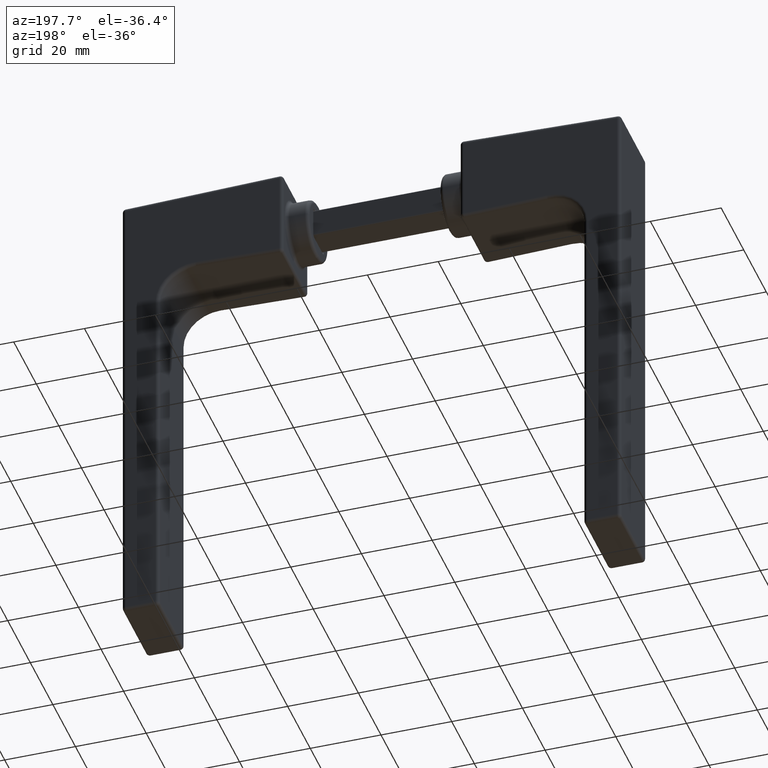
[diagram: clean part render]
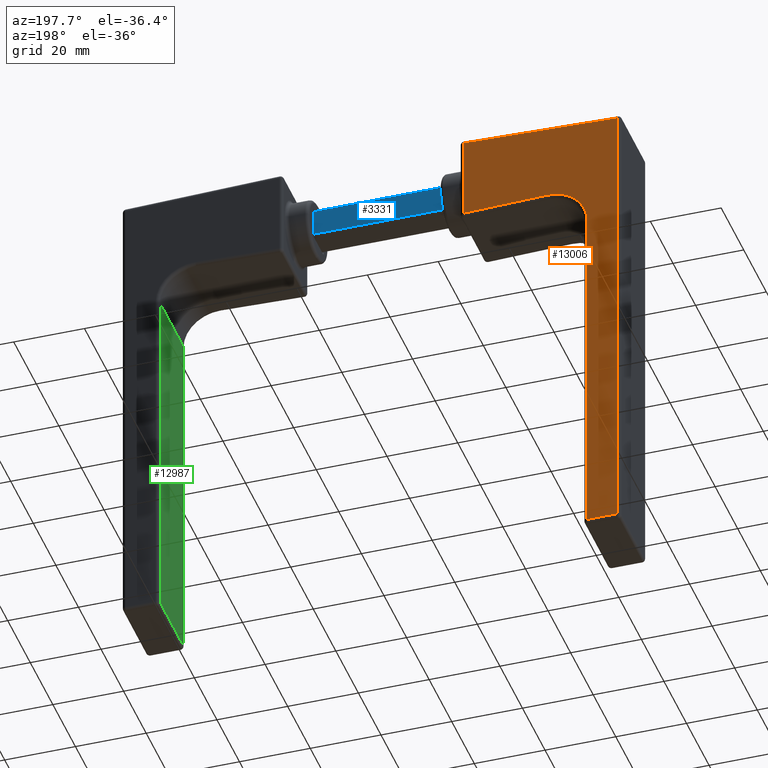
[diagram: same view with three faces highlighted in distinct colors, each labeled with its STEP entity id]
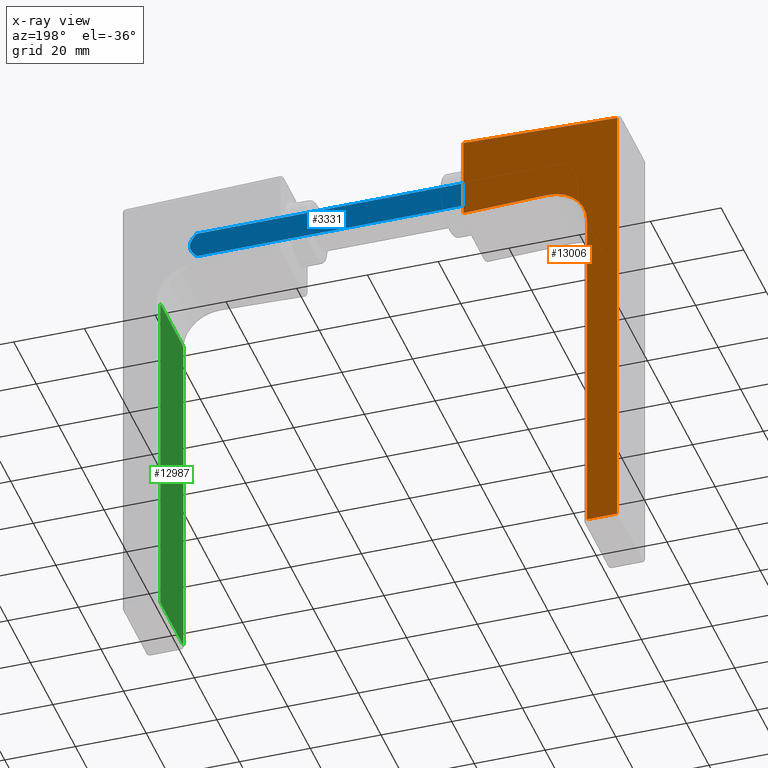
[diagram: x-ray of the same camera — body ghosted, the three highlighted faces saturated]
A machine part, auxiliary view with three faces highlighted in distinct colors.
The next image is the same camera in x-ray (body ghosted, the three faces saturated) — at least one of them is partly hidden behind the body in this view.
Their STEP definitions:

[orange] entity #13006 — the highlighted planar face has unit normal (0, -1, 0).
#441 = DIRECTION ( 'NONE',  ( 6.869878546683472840E-17, 0.000000000000000000, -1.000000000000000000 ) ) ;
#497 = CARTESIAN_POINT ( 'NONE',  ( -24.66609786273275162, 11.25000000000000000, -11.00046081128621367 ) ) ;
#504 = VECTOR ( 'NONE', #11889, 1000.000000000000000 ) ;
#978 = VERTEX_POINT ( 'NONE', #1608 ) ;
#1156 = ORIENTED_EDGE ( 'NONE', *, *, #6301, .T. ) ;
#1277 = VECTOR ( 'NONE', #8339, 1000.000000000000000 ) ;
#1538 = CARTESIAN_POINT ( 'NONE',  ( -0.9999999999999940048, 11.25000000000000000, -11.71917024226190307 ) ) ;
#1608 = CARTESIAN_POINT ( 'NONE',  ( -0.9999999999999940048, 11.25000000000000000, 11.71917024226190485 ) ) ;
#2147 = CIRCLE ( 'NONE', #4496, 11.00000000000000355 ) ;
#2401 = EDGE_CURVE ( 'NONE', #11448, #5147, #12593, .T. ) ;
#2997 = PLANE ( 'NONE',  #4911 ) ;
#3249 = CARTESIAN_POINT ( 'NONE',  ( -24.99999999999999645, 11.25000000000000000, -21.99539188713786686 ) ) ;
#3584 = VERTEX_POINT ( 'NONE', #1538 ) ;
#3726 = LINE ( 'NONE', #11120, #7279 ) ;
#3934 = ORIENTED_EDGE ( 'NONE', *, *, #12117, .T. ) ;
#4211 = CARTESIAN_POINT ( 'NONE',  ( -24.99999999999999645, 11.25000000000000000, -21.99539188713786686 ) ) ;
#4496 = AXIS2_PLACEMENT_3D ( 'NONE', #3249, #12913, #5671 ) ;
#4911 = AXIS2_PLACEMENT_3D ( 'NONE', #4211, #5425, #13864 ) ;
#5147 = VERTEX_POINT ( 'NONE', #12115 ) ;
#5415 = LINE ( 'NONE', #7667, #1277 ) ;
#5425 = DIRECTION ( 'NONE',  ( 0.000000000000000000, -1.000000000000000000, 0.000000000000000000 ) ) ;
#5671 = DIRECTION ( 'NONE',  ( 0.000000000000000000, 0.000000000000000000, -1.000000000000000000 ) ) ;
#5747 = VERTEX_POINT ( 'NONE', #15077 ) ;
#5910 = VERTEX_POINT ( 'NONE', #497 ) ;
#6301 = EDGE_CURVE ( 'NONE', #5147, #5747, #5415, .T. ) ;
#6341 = EDGE_CURVE ( 'NONE', #5747, #978, #12974, .T. ) ;
#6402 = ORIENTED_EDGE ( 'NONE', *, *, #10473, .T. ) ;
#6877 = EDGE_CURVE ( 'NONE', #978, #3584, #12959, .T. ) ;
#7279 = VECTOR ( 'NONE', #441, 1000.000000000000000 ) ;
#7334 = ORIENTED_EDGE ( 'NONE', *, *, #6341, .T. ) ;
#7667 = CARTESIAN_POINT ( 'NONE',  ( -44.50000000000000000, 11.25000000000000000, -21.99539188713786686 ) ) ;
#8339 = DIRECTION ( 'NONE',  ( 0.000000000000000000, 0.000000000000000000, 1.000000000000000000 ) ) ;
#8408 = CARTESIAN_POINT ( 'NONE',  ( -24.99999999999986500, 11.25000000000000000, -121.9999999999999574 ) ) ;
#8518 = CARTESIAN_POINT ( 'NONE',  ( -24.66609786273275162, 11.25000000000000000, -11.00046081128621367 ) ) ;
#8538 = CARTESIAN_POINT ( 'NONE',  ( -0.9999999999999940048, 11.25000000000000000, -21.99539188713786686 ) ) ;
#8692 = DIRECTION ( 'NONE',  ( 0.000000000000000000, 0.000000000000000000, -1.000000000000000000 ) ) ;
#9113 = CARTESIAN_POINT ( 'NONE',  ( -36.00000000000000711, 11.25000000000000000, -21.99539188713786331 ) ) ;
#9132 = EDGE_CURVE ( 'NONE', #3584, #5910, #14435, .T. ) ;
#9166 = EDGE_LOOP ( 'NONE', ( #6402, #12633, #1156, #7334, #12435, #14614, #3934 ) ) ;
#9443 = CARTESIAN_POINT ( 'NONE',  ( -26.00081132108978110, 11.25000000000000000, 10.95992725329388762 ) ) ;
#9526 = DIRECTION ( 'NONE',  ( -0.9995391887137865528, 0.000000000000000000, 0.03035473975156778928 ) ) ;
#10473 = EDGE_CURVE ( 'NONE', #14973, #11448, #3726, .T. ) ;
#10827 = DIRECTION ( 'NONE',  ( 0.9995391887137866638, 0.000000000000000000, 0.03035473975156748397 ) ) ;
#11120 = CARTESIAN_POINT ( 'NONE',  ( -36.00000000000000711, 11.25000000000000000, -21.99539188713786686 ) ) ;
#11448 = VERTEX_POINT ( 'NONE', #13824 ) ;
#11629 = VECTOR ( 'NONE', #8692, 1000.000000000000000 ) ;
#11889 = DIRECTION ( 'NONE',  ( -1.000000000000000000, 0.000000000000000000, -1.321694076934710008E-15 ) ) ;
#12115 = CARTESIAN_POINT ( 'NONE',  ( -44.50000000000000000, 11.25000000000000000, -121.9999999999999858 ) ) ;
#12117 = EDGE_CURVE ( 'NONE', #5910, #14973, #2147, .T. ) ;
#12435 = ORIENTED_EDGE ( 'NONE', *, *, #6877, .T. ) ;
#12593 = LINE ( 'NONE', #8408, #504 ) ;
#12633 = ORIENTED_EDGE ( 'NONE', *, *, #2401, .T. ) ;
#12913 = DIRECTION ( 'NONE',  ( -0.000000000000000000, -1.000000000000000000, 0.000000000000000000 ) ) ;
#12920 = VECTOR ( 'NONE', #9526, 1000.000000000000000 ) ;
#12959 = LINE ( 'NONE', #8538, #11629 ) ;
#12974 = LINE ( 'NONE', #9443, #14494 ) ;
#13006 = ADVANCED_FACE ( 'NONE', ( #14407 ), #2997, .F. ) ;
#13824 = CARTESIAN_POINT ( 'NONE',  ( -36.00000000000000000, 11.25000000000000000, -121.9999999999999716 ) ) ;
#13864 = DIRECTION ( 'NONE',  ( 0.000000000000000000, -0.000000000000000000, -1.000000000000000000 ) ) ;
#14407 = FACE_OUTER_BOUND ( 'NONE', #9166, .T. ) ;
#14435 = LINE ( 'NONE', #8518, #12920 ) ;
#14494 = VECTOR ( 'NONE', #10827, 999.9999999999998863 ) ;
#14614 = ORIENTED_EDGE ( 'NONE', *, *, #9132, .T. ) ;
#14973 = VERTEX_POINT ( 'NONE', #9113 ) ;
#15077 = CARTESIAN_POINT ( 'NONE',  ( -44.50000000000000000, 11.25000000000000000, 10.39813031295975776 ) ) ;

[blue] entity #3331 — the highlighted planar face has unit normal (0, -1, 0).
#271 = CARTESIAN_POINT ( 'NONE',  ( 77.60176658837872310, 4.150000000000001243, 2.571228649143739720 ) ) ;
#285 = CARTESIAN_POINT ( 'NONE',  ( 76.64666839470568505, 4.150000000000002132, 3.750000000000000888 ) ) ;
#412 = CARTESIAN_POINT ( 'NONE',  ( 77.42177395461663991, 4.150000000000001243, 2.816757340327820991 ) ) ;
#555 = ORIENTED_EDGE ( 'NONE', *, *, #1278, .T. ) ;
#634 = CARTESIAN_POINT ( 'NONE',  ( -18.50000000000001066, 4.150000000000001243, 3.750000000000000000 ) ) ;
#717 = ORIENTED_EDGE ( 'NONE', *, *, #8335, .F. ) ;
#1031 = CARTESIAN_POINT ( 'NONE',  ( 78.33423553760103175, 4.150000000000001243, -1.254048193631946972 ) ) ;
#1249 = DIRECTION ( 'NONE',  ( -1.000000000000000000, -0.000000000000000000, -0.000000000000000000 ) ) ;
#1278 = EDGE_CURVE ( 'NONE', #8499, #14712, #13062, .T. ) ;
#1309 = LINE ( 'NONE', #15307, #10154 ) ;
#1373 = DIRECTION ( 'NONE',  ( 0.000000000000000000, -1.000000000000000000, 0.000000000000000000 ) ) ;
#1646 = CARTESIAN_POINT ( 'NONE',  ( 78.08072271493743699, 4.150000000000001243, 1.803827930723424178 ) ) ;
#1736 = CARTESIAN_POINT ( 'NONE',  ( 78.50000000000000000, 4.150000000000001243, -3.750000000000001776 ) ) ;
#1957 = ORIENTED_EDGE ( 'NONE', *, *, #6237, .T. ) ;
#2133 = AXIS2_PLACEMENT_3D ( 'NONE', #13336, #1373, #14555 ) ;
#2219 = VECTOR ( 'NONE', #1249, 1000.000000000000000 ) ;
#2415 = CARTESIAN_POINT ( 'NONE',  ( 78.50000000000000000, 4.150000000000001243, -0.6672616506453926677 ) ) ;
#2429 = ORIENTED_EDGE ( 'NONE', *, *, #9978, .F. ) ;
#2598 = LINE ( 'NONE', #8462, #2219 ) ;
#2656 = CARTESIAN_POINT ( 'NONE',  ( 76.84878207714528742, 4.150000000000002132, 3.523903525672142045 ) ) ;
#3331 = ADVANCED_FACE ( 'NONE', ( #3894 ), #7013, .F. ) ;
#3458 = CARTESIAN_POINT ( 'NONE',  ( 77.41951917066938904, 4.150000000000001243, -2.819746265012182729 ) ) ;
#3894 = FACE_OUTER_BOUND ( 'NONE', #6858, .T. ) ;
#3965 = CARTESIAN_POINT ( 'NONE',  ( 77.04533973045548123, 4.150000000000001243, 3.292999465038865647 ) ) ;
#4157 = VERTEX_POINT ( 'NONE', #6203 ) ;
#4562 = CARTESIAN_POINT ( 'NONE',  ( 77.92980899301130648, 4.150000000000001243, -2.066906617109670385 ) ) ;
#4717 = CARTESIAN_POINT ( 'NONE',  ( 76.64666839470569926, 4.150000000000002132, -3.750000000000000444 ) ) ;
#5024 = CARTESIAN_POINT ( 'NONE',  ( 76.64666839470568505, 4.150000000000002132, 3.750000000000000888 ) ) ;
#5366 = DIRECTION ( 'NONE',  ( 0.000000000000000000, 0.000000000000000000, 1.000000000000000000 ) ) ;
#6023 = CARTESIAN_POINT ( 'NONE',  ( 76.64666839470569926, 4.150000000000002132, -3.750000000000000444 ) ) ;
#6203 = CARTESIAN_POINT ( 'NONE',  ( 78.50000000000000000, 4.150000000000001243, 0.6672616506453783458 ) ) ;
#6237 = EDGE_CURVE ( 'NONE', #14712, #7851, #2598, .T. ) ;
#6858 = EDGE_LOOP ( 'NONE', ( #2429, #11385, #717, #555, #1957, #8524 ) ) ;
#7013 = PLANE ( 'NONE',  #2133 ) ;
#7851 = VERTEX_POINT ( 'NONE', #9819 ) ;
#7893 = CARTESIAN_POINT ( 'NONE',  ( 78.50000000000000000, 4.150000000000001243, -0.6672616506453926677 ) ) ;
#8116 = DIRECTION ( 'NONE',  ( -1.000000000000000000, -0.000000000000000000, -0.000000000000000000 ) ) ;
#8194 = CARTESIAN_POINT ( 'NONE',  ( 77.59989182223247894, 4.150000000000002132, -2.573921218223423235 ) ) ;
#8244 = CARTESIAN_POINT ( 'NONE',  ( 78.43733954513966466, 4.150000000000002132, -0.9633007795374486371 ) ) ;
#8335 = EDGE_CURVE ( 'NONE', #8499, #4157, #10294, .T. ) ;
#8462 = CARTESIAN_POINT ( 'NONE',  ( 78.50000000000000000, 4.150000000000001243, -3.750000000000001776 ) ) ;
#8499 = VERTEX_POINT ( 'NONE', #7893 ) ;
#8524 = ORIENTED_EDGE ( 'NONE', *, *, #12291, .F. ) ;
#8801 = CARTESIAN_POINT ( 'NONE',  ( 78.33353447262393843, 4.150000000000002132, 1.255600607067148378 ) ) ;
#9780 = CARTESIAN_POINT ( 'NONE',  ( -18.50000000000000355, 4.150000000000001243, -3.750000000000001776 ) ) ;
#9819 = CARTESIAN_POINT ( 'NONE',  ( -18.50000000000000355, 4.150000000000001243, -3.750000000000001776 ) ) ;
#9978 = EDGE_CURVE ( 'NONE', #13279, #14913, #1309, .T. ) ;
#10154 = VECTOR ( 'NONE', #8116, 1000.000000000000000 ) ;
#10294 = LINE ( 'NONE', #1736, #11053 ) ;
#10684 = CARTESIAN_POINT ( 'NONE',  ( 76.84750491138444772, 4.150000000000001243, -3.525332239810492929 ) ) ;
#10792 = B_SPLINE_CURVE_WITH_KNOTS ( 'NONE', 3,
 ( #5024, #2656, #3965, #412, #271, #12304, #1646, #8801, #11196, #12404 ),
 .UNSPECIFIED., .F., .F.,
 ( 4, 2, 2, 2, 4 ),
 ( 0.006554399335957732803, 0.007463372881222552629, 0.008372346426487372456, 0.009281319971752190548, 0.01019029351701701037 ),
 .UNSPECIFIED. ) ;
#11053 = VECTOR ( 'NONE', #5366, 1000.000000000000000 ) ;
#11196 = CARTESIAN_POINT ( 'NONE',  ( 78.43719430714108398, 4.150000000000001243, 0.9639869560210214683 ) ) ;
#11385 = ORIENTED_EDGE ( 'NONE', *, *, #14871, .T. ) ;
#11785 = CARTESIAN_POINT ( 'NONE',  ( 78.08020854313511450, 4.150000000000001243, -1.804975038956879496 ) ) ;
#11946 = CARTESIAN_POINT ( 'NONE',  ( 77.04329950197015364, 4.150000000000002132, -3.295442768130381950 ) ) ;
#12291 = EDGE_CURVE ( 'NONE', #14913, #7851, #14422, .T. ) ;
#12304 = CARTESIAN_POINT ( 'NONE',  ( 77.93089861650128114, 4.150000000000002132, 2.065041825989774704 ) ) ;
#12404 = CARTESIAN_POINT ( 'NONE',  ( 78.50000000000000000, 4.150000000000001243, 0.6672616506453783458 ) ) ;
#13062 = B_SPLINE_CURVE_WITH_KNOTS ( 'NONE', 3,
 ( #2415, #8244, #1031, #11785, #4562, #8194, #3458, #11946, #10684, #4717 ),
 .UNSPECIFIED., .F., .F.,
 ( 4, 2, 2, 2, 4 ),
 ( 0.01152982273537615267, 0.01243759425802561623, 0.01334536578067508153, 0.01425313730332454509, 0.01516090882597400866 ),
 .UNSPECIFIED. ) ;
#13279 = VERTEX_POINT ( 'NONE', #285 ) ;
#13284 = VECTOR ( 'NONE', #14803, 1000.000000000000000 ) ;
#13336 = CARTESIAN_POINT ( 'NONE',  ( 78.50000000000000000, 4.150000000000001243, -3.750000000000001776 ) ) ;
#14422 = LINE ( 'NONE', #9780, #13284 ) ;
#14555 = DIRECTION ( 'NONE',  ( 0.000000000000000000, -0.000000000000000000, -1.000000000000000000 ) ) ;
#14712 = VERTEX_POINT ( 'NONE', #6023 ) ;
#14803 = DIRECTION ( 'NONE',  ( 0.000000000000000000, 0.000000000000000000, -1.000000000000000000 ) ) ;
#14871 = EDGE_CURVE ( 'NONE', #13279, #4157, #10792, .T. ) ;
#14913 = VERTEX_POINT ( 'NONE', #634 ) ;
#15307 = CARTESIAN_POINT ( 'NONE',  ( 78.50000000000000000, 4.150000000000001243, 3.750000000000000000 ) ) ;

[green] entity #12987 — the highlighted planar face has unit normal (1, -0, -0).
#307 = LINE ( 'NONE', #486, #11842 ) ;
#486 = CARTESIAN_POINT ( 'NONE',  ( -35.00000000000000000, 11.25000000000000000, -21.99539188713786331 ) ) ;
#503 = CARTESIAN_POINT ( 'NONE',  ( -34.99999999999999289, 11.25000000000000000, -122.9999999999999716 ) ) ;
#558 = DIRECTION ( 'NONE',  ( -6.869878546683472840E-17, 0.000000000000000000, 1.000000000000000000 ) ) ;
#1351 = VERTEX_POINT ( 'NONE', #4926 ) ;
#1864 = ORIENTED_EDGE ( 'NONE', *, *, #15531, .T. ) ;
#2141 = VERTEX_POINT ( 'NONE', #10832 ) ;
#2303 = EDGE_CURVE ( 'NONE', #2141, #11460, #307, .T. ) ;
#4645 = DIRECTION ( 'NONE',  ( 6.869878546683472840E-17, 0.000000000000000000, -1.000000000000000000 ) ) ;
#4848 = DIRECTION ( 'NONE',  ( -6.869878546683472840E-17, -0.000000000000000000, 1.000000000000000000 ) ) ;
#4926 = CARTESIAN_POINT ( 'NONE',  ( -34.99999999999999289, -10.24999999999999822, -121.9999999999999716 ) ) ;
#5251 = DIRECTION ( 'NONE',  ( -0.000000000000000000, 1.000000000000000000, -0.000000000000000000 ) ) ;
#5793 = ORIENTED_EDGE ( 'NONE', *, *, #10255, .T. ) ;
#5823 = ORIENTED_EDGE ( 'NONE', *, *, #14323, .T. ) ;
#6524 = DIRECTION ( 'NONE',  ( -1.000000000000000000, 0.000000000000000000, -6.869878546683472840E-17 ) ) ;
#6801 = LINE ( 'NONE', #13647, #15120 ) ;
#7489 = CARTESIAN_POINT ( 'NONE',  ( -34.99999999999999289, 10.24999999999999822, -122.9999999999999716 ) ) ;
#7790 = PLANE ( 'NONE',  #12785 ) ;
#8927 = CARTESIAN_POINT ( 'NONE',  ( -34.99999999999999289, 10.24999999999999822, -121.9999999999999716 ) ) ;
#9100 = EDGE_LOOP ( 'NONE', ( #1864, #5793, #13830, #5823 ) ) ;
#10075 = CARTESIAN_POINT ( 'NONE',  ( -35.00000000000000000, -10.24999999999999112, -21.99539188713786331 ) ) ;
#10134 = DIRECTION ( 'NONE',  ( -0.000000000000000000, -1.000000000000000000, -0.000000000000000000 ) ) ;
#10255 = EDGE_CURVE ( 'NONE', #10415, #2141, #15277, .T. ) ;
#10415 = VERTEX_POINT ( 'NONE', #8927 ) ;
#10832 = CARTESIAN_POINT ( 'NONE',  ( -35.00000000000000000, 10.24999999999999822, -21.99539188713786331 ) ) ;
#11460 = VERTEX_POINT ( 'NONE', #10075 ) ;
#11842 = VECTOR ( 'NONE', #10134, 1000.000000000000000 ) ;
#11868 = CARTESIAN_POINT ( 'NONE',  ( -34.99999999999999289, -10.24999999999999822, -122.9999999999999716 ) ) ;
#11919 = VECTOR ( 'NONE', #4645, 1000.000000000000000 ) ;
#12065 = VECTOR ( 'NONE', #4848, 1000.000000000000000 ) ;
#12785 = AXIS2_PLACEMENT_3D ( 'NONE', #503, #6524, #558 ) ;
#12987 = ADVANCED_FACE ( 'NONE', ( #15162 ), #7790, .F. ) ;
#13647 = CARTESIAN_POINT ( 'NONE',  ( -34.99999999999999289, 11.25000000000000000, -121.9999999999999716 ) ) ;
#13830 = ORIENTED_EDGE ( 'NONE', *, *, #2303, .T. ) ;
#14323 = EDGE_CURVE ( 'NONE', #11460, #1351, #15134, .T. ) ;
#15120 = VECTOR ( 'NONE', #5251, 1000.000000000000000 ) ;
#15134 = LINE ( 'NONE', #11868, #11919 ) ;
#15162 = FACE_OUTER_BOUND ( 'NONE', #9100, .T. ) ;
#15277 = LINE ( 'NONE', #7489, #12065 ) ;
#15531 = EDGE_CURVE ( 'NONE', #1351, #10415, #6801, .T. ) ;